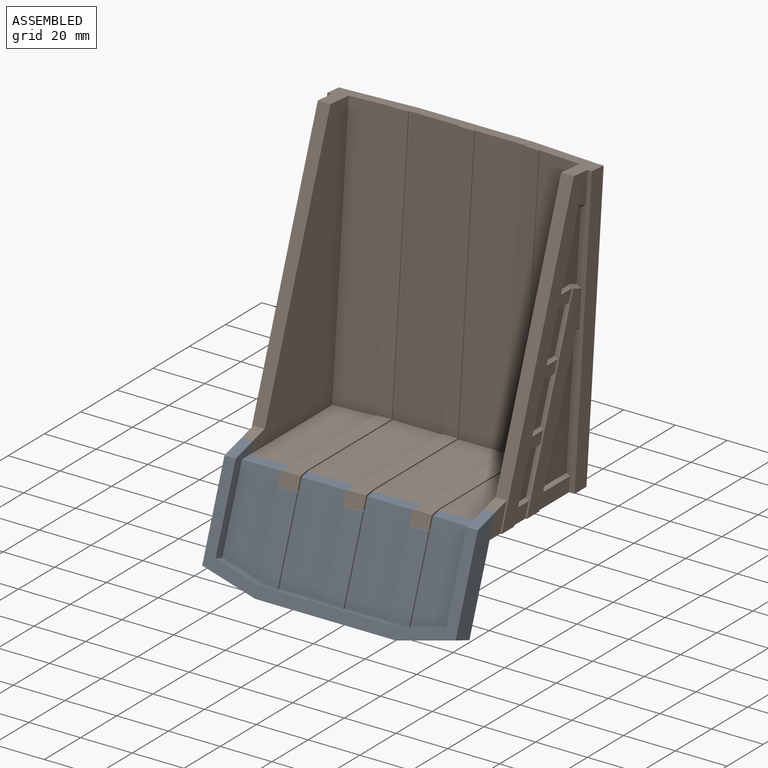
[diagram: assembled view]
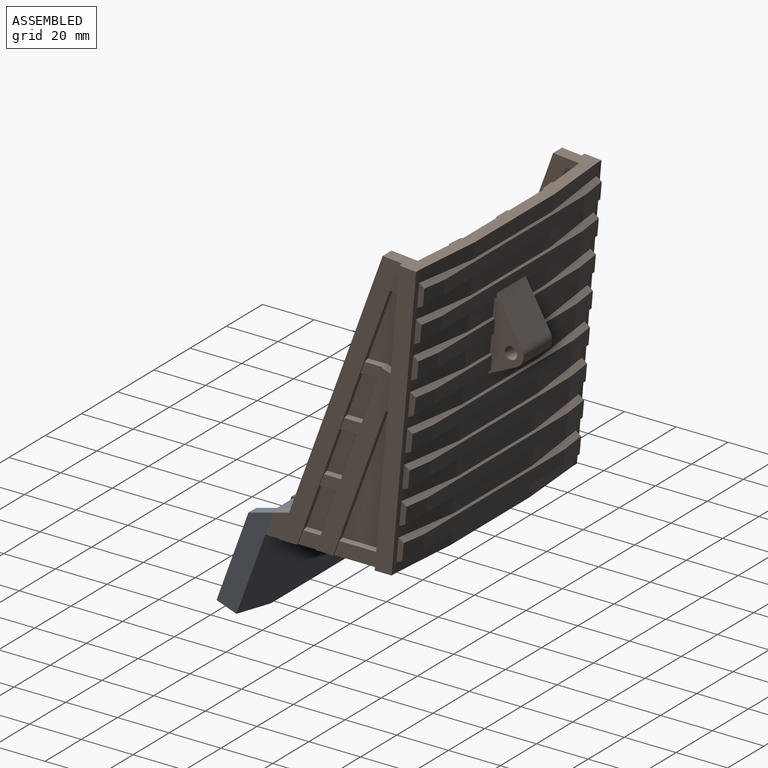
[diagram: assembled view, second angle]
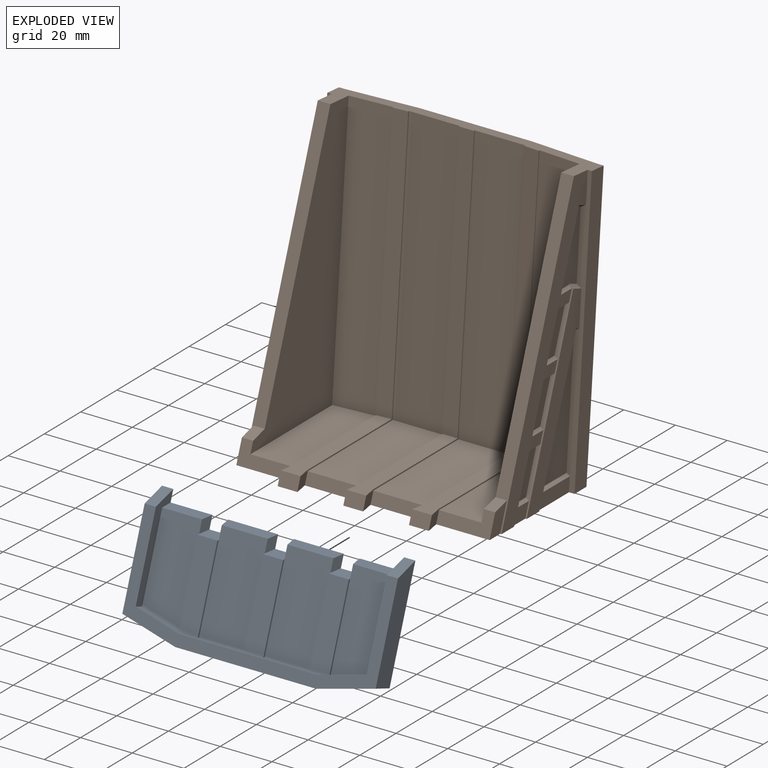
[diagram: exploded view]
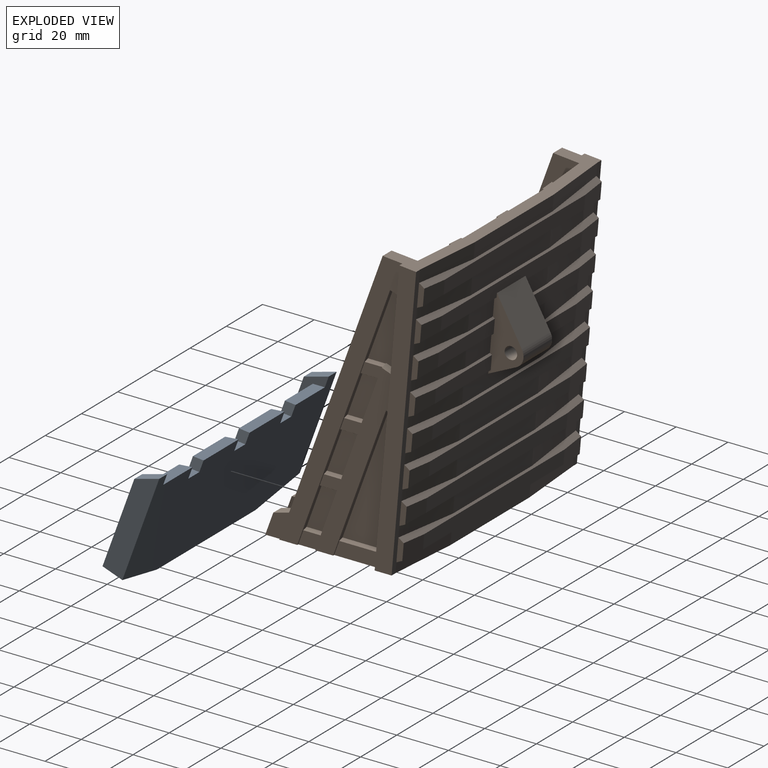
[diagram: exploded view, second angle]
ASSEMBLY  parts=2 mates=3
PART A: 40 faces, bbox 98x23.8x44.3 mm
  f0: plane 33.98x15.42mm, normal (0,-0.94,0.34), area 527.9mm2, adj f3,f8,f16,f23,f25,f39
  f1: plane 34.58x17.78mm, normal (0,-0.94,0.34), area 654.2mm2, adj f4,f6,f23,f24,f27,f29,f36,f38
  f2: plane 34.58x17.78mm, normal (0,-0.94,0.34), area 654.2mm2, adj f5,f6,f27,f28,f31,f33,f34,f37
  f3: plane 16.19x4.63mm, normal (0,0,1), area 73.2mm2, adj f0,f9,f16,f39
  f4: plane 19.31x4.63mm, normal (0,0,1), area 85.9mm2, adj f1,f9,f36,f38
  f5: plane 19.31x4.63mm, normal (0,0,1), area 85.9mm2, adj f2,f9,f34,f37
  f6: plane 53.36x3.58mm, normal (0,0.34,0.94), area 190.4mm2, adj f1,f2,f7,f8,f11,f22,f24,f26
  f7: plane 17.95x5.27mm, normal (-0.24,0.33,0.91), area 68.6mm2, adj f6,f10,f11,f15,f30,f32
  f8: plane 17.95x5.27mm, normal (0.24,0.33,0.91), area 68.6mm2, adj f0,f6,f11,f16,f22,f25
  f9: plane 97.97x44.31mm, normal (0,0.94,-0.34), area 4019.6mm2, adj f3,f4,f5,f12,f13,f14,f15,f16
  f10: plane 33.98x15.42mm, normal (0,-0.94,0.34), area 527.9mm2, adj f7,f15,f17,f31,f32,f35
  f11: plane 97.97x38.94mm, normal (0,-0.94,0.34), area 711.6mm2, adj f6,f7,f8,f12,f13,f14,f15,f16
  f12: plane 21.77x9.53mm, normal (-0.24,-0.33,-0.91), area 183.2mm2, adj f9,f11,f13,f20
  f13: plane 54.43x7.67mm, normal (0,-0.34,-0.94), area 444.4mm2, adj f9,f11,f12,f14
  f14: plane 21.77x9.53mm, normal (0.24,-0.33,-0.91), area 183.2mm2, adj f9,f11,f13,f21
  f15: plane 34.51x20.78mm, normal (-1,0,0), area 145.3mm2, adj f7,f9,f10,f11,f17,f18
  f16: plane 34.51x20.78mm, normal (1,0,0), area 145.3mm2, adj f0,f3,f8,f9,f11,f19
  f17: plane 16.19x4.63mm, normal (0,0,1), area 73.2mm2, adj f9,f10,f15,f35
  f18: plane 9.63x4.35mm, normal (0,-0.26,0.97), area 43.4mm2, adj f9,f11,f15,f21
  f19: plane 9.63x4.35mm, normal (0,-0.26,0.97), area 43.4mm2, adj f9,f11,f16,f20
  f20: plane 39.2x21.94mm, normal (-1,0,0), area 317.2mm2, adj f9,f11,f12,f19
  f21: plane 39.2x21.94mm, normal (1,0,0), area 317.2mm2, adj f9,f11,f14,f18
  f22: plane 29.85x10.86mm, normal (0,-0.94,0.34), area 241.2mm2, adj f6,f8,f23,f24,f25
  f23: plane 7.62x5.41mm, normal (0,0,1), area 37.6mm2, adj f0,f1,f9,f22,f24,f25,f38,f39
  f24: plane 30.09x11.64mm, normal (1,0,0), area 23.1mm2, adj f1,f6,f22,f23
  f25: plane 29.5x11.42mm, normal (-1,0,0), area 22.7mm2, adj f0,f8,f22,f23
  f26: plane 29.85x10.86mm, normal (0,-0.94,0.34), area 242mm2, adj f6,f27,f28,f29
  f27: plane 7.62x5.41mm, normal (0,0,1), area 37.6mm2, adj f1,f2,f9,f26,f28,f29,f36,f37
  f28: plane 30.09x11.64mm, normal (1,0,0), area 23.1mm2, adj f2,f6,f26,f27
  f29: plane 30.09x11.64mm, normal (-1,0,0), area 23.1mm2, adj f1,f6,f26,f27
  f30: plane 29.85x10.86mm, normal (0,-0.94,0.34), area 241.2mm2, adj f6,f7,f31,f32,f33
  f31: plane 7.62x5.41mm, normal (0,0,1), area 37.6mm2, adj f2,f9,f10,f30,f32,f33,f34,f35
  f32: plane 29.5x11.42mm, normal (1,0,0), area 22.7mm2, adj f7,f10,f30,f31
  f33: plane 30.09x11.64mm, normal (-1,0,0), area 23.1mm2, adj f2,f6,f30,f31
  f34: plane 6.26x4.48mm, normal (0.98,-0.16,0.06), area 21.1mm2, adj f2,f5,f9,f31
  f35: plane 6.26x4.48mm, normal (-0.98,-0.16,0.06), area 21.1mm2, adj f9,f10,f17,f31
  f36: plane 6.26x4.48mm, normal (0.98,-0.16,0.06), area 21.1mm2, adj f1,f4,f9,f27
  f37: plane 6.26x4.48mm, normal (-0.98,-0.16,0.06), area 21.1mm2, adj f2,f5,f9,f27
  f38: plane 6.26x4.48mm, normal (-0.98,-0.16,0.06), area 21.1mm2, adj f1,f4,f9,f23
  f39: plane 6.26x4.48mm, normal (0.98,-0.16,0.06), area 21.1mm2, adj f0,f3,f9,f23
PART B: 210 faces, bbox 102.3x76.5x109.9 mm
  f0: plane 104.63x16.32mm, normal (-0.08,-0.99,0.09), area 1718.3mm2, adj f87,f89,f177,f201
  f1: plane 51.67x7.56mm, normal (0,0,1), area 304.3mm2, adj f187,f200,f201,f202,f203,f209
  f2: plane 104.47x9.21mm, normal (0.08,-0.99,0.09), area 93.4mm2, adj f7,f88,f177,f197
  f3: plane 51.67x7.56mm, normal (0,0,1), area 304.3mm2, adj f181,f196,f197,f198,f199,f208
  f4: plane 104.47x18.68mm, normal (0,-1,0.09), area 1959.3mm2, adj f5,f92,f177,f192,f204
  f5: plane 46.98x19.57mm, normal (0,0,1), area 919.5mm2, adj f4,f8,f92,f192,f200
  f6: plane 46.45x16.32mm, normal (0,0,1), area 747.2mm2, adj f10,f90,f91,f196
  f7: plane 46.98x19.57mm, normal (0,0,1), area 919.5mm2, adj f2,f9,f88,f191,f197
  f8: plane 19.57x4.35mm, normal (0,-0.94,0.34), area 90.7mm2, adj f5,f174,f185,f189
  f9: plane 19.57x4.35mm, normal (0,-0.94,0.34), area 90.7mm2, adj f7,f174,f182,f186
  f10: plane 20.67x8.51mm, normal (0,-0.94,0.34), area 115mm2, adj f6,f41,f82,f90,f174,f183
  f11: plane 8.93x5.44mm, normal (1,0,0), area 37.8mm2, adj f15,f143,f174,f175
  f12: plane 8.54x4.35mm, normal (1,0,0), area 30.3mm2, adj f15,f144,f146,f175
  f13: plane 8.54x4.35mm, normal (1,0,0), area 30.3mm2, adj f15,f147,f149,f175
  f14: plane 8.54x4.35mm, normal (1,0,0), area 30.3mm2, adj f15,f150,f152,f175
  f15: plane 71.71x26.1mm, normal (0,-0.94,0.34), area 113.5mm2, adj f11,f12,f13,f14,f18,f19,f143,f144
  f16: plane 56.17x20.44mm, normal (0,0.94,-0.34), area 104.4mm2, adj f17,f19,f32,f154,f155,f174
  f17: plane 1.97x1.91mm, normal (0.5,-0.3,-0.81), area 4.1mm2, adj f16,f19,f21,f155
  f18: plane 4.54x2.65mm, normal (0.5,0.3,0.81), area 10.1mm2, adj f15,f19,f21,f153
  f19: plane 70.67x30.17mm, normal (1,0,0), area 482.8mm2, adj f15,f16,f17,f18,f21,f174
  f20: plane 10.23x9.52mm, normal (1,0,0), area 54.3mm2, adj f86,f174,f178,f180
  f21: plane 109.2x9.55mm, normal (0,-1,0.09), area 328.2mm2, adj f17,f18,f19,f23,f32,f153,f154,f155
  f22: plane 108.63x9.5mm, normal (0,1,-0.09), area 237.4mm2, adj f23,f24,f25,f26,f27,f28,f29,f30
  f23: plane 109.2x16.06mm, normal (1,0,0), area 714.1mm2, adj f21,f22,f174,f177
  f24: plane 8.87x2.84mm, normal (1,0,0), area 16.6mm2, adj f22,f97,f98,f99
  f25: plane 8.87x2.84mm, normal (1,0,0), area 16.6mm2, adj f22,f102,f103,f104
  f26: plane 8.87x2.84mm, normal (1,0,0), area 16.6mm2, adj f22,f107,f108,f109
  f27: plane 8.87x2.84mm, normal (1,0,0), area 16.6mm2, adj f22,f112,f113,f114
  f28: plane 8.87x2.84mm, normal (1,0,0), area 16.6mm2, adj f22,f121,f122,f123
  f29: plane 8.87x2.84mm, normal (1,0,0), area 16.6mm2, adj f22,f129,f130,f131
  f30: plane 8.87x2.84mm, normal (1,0,0), area 16.6mm2, adj f22,f134,f135,f136
  f31: plane 8.87x2.84mm, normal (1,0,0), area 16.6mm2, adj f22,f139,f140,f141
  f32: plane 17.65x5.44mm, normal (1,0,0), area 89.4mm2, adj f16,f21,f154,f174
  f33: plane 98.69x35.92mm, normal (0,0.94,-0.34), area 168.2mm2, adj f34,f36,f37,f38,f39,f40,f156,f157
  f34: plane 4.05x2.47mm, normal (-0.5,-0.3,-0.81), area 8.9mm2, adj f33,f36,f42,f166
  f35: plane 109.87x39.99mm, normal (0,-0.94,0.34), area 525.3mm2, adj f36,f41,f82,f90,f174,f177
  f36: plane 109.87x47.58mm, normal (-1,0,0), area 788.7mm2, adj f33,f34,f35,f42,f174,f177
  f37: plane 8.93x5.44mm, normal (-1,0,0), area 37.8mm2, adj f33,f156,f169,f174
  f38: plane 8.54x4.35mm, normal (-1,0,0), area 30.3mm2, adj f33,f157,f159,f169
  f39: plane 8.54x4.35mm, normal (-1,0,0), area 30.3mm2, adj f33,f160,f162,f169
  f40: plane 8.54x4.35mm, normal (-1,0,0), area 30.3mm2, adj f33,f163,f165,f169
  f41: plane 10.23x9.52mm, normal (-1,0,0), area 54.3mm2, adj f10,f35,f82,f174
  f42: plane 109.2x9.55mm, normal (0,-1,0.09), area 328.2mm2, adj f34,f36,f44,f53,f166,f167,f168,f171
  f43: plane 108.63x9.5mm, normal (0,1,-0.09), area 237.4mm2, adj f44,f45,f46,f47,f48,f49,f50,f51
  f44: plane 109.2x16.06mm, normal (-1,0,0), area 714.1mm2, adj f42,f43,f174,f177
  f45: plane 8.87x2.84mm, normal (-1,0,0), area 16.6mm2, adj f43,f98,f99,f100
  f46: plane 8.87x2.84mm, normal (-1,0,0), area 16.6mm2, adj f43,f103,f104,f105
  f47: plane 8.87x2.84mm, normal (-1,0,0), area 16.6mm2, adj f43,f108,f109,f110
  f48: plane 8.87x2.84mm, normal (-1,0,0), area 16.6mm2, adj f43,f113,f114,f115
  f49: plane 8.87x2.84mm, normal (-1,0,0), area 16.6mm2, adj f43,f116,f117,f118
  f50: plane 8.87x2.84mm, normal (-1,0,0), area 16.6mm2, adj f43,f124,f125,f126
  f51: plane 8.87x2.84mm, normal (-1,0,0), area 16.6mm2, adj f43,f132,f135,f137
  f52: plane 8.87x2.84mm, normal (-1,0,0), area 16.6mm2, adj f43,f140,f141,f142
  f53: plane 17.65x5.44mm, normal (-1,0,0), area 89.4mm2, adj f42,f167,f170,f174
  f54: plane 43.54x6.04mm, normal (0,1,-0.09), area 263.9mm2, adj f55,f56,f140,f177
  f55: plane 27.21x6.23mm, normal (-0.08,0.99,-0.09), area 148.3mm2, adj f43,f54,f140,f177
  f56: plane 27.21x6.23mm, normal (0.08,0.99,-0.09), area 148.3mm2, adj f22,f54,f140,f177
  f57: plane 43.54x6.65mm, normal (0,1,-0.09), area 290.7mm2, adj f59,f60,f135,f141
  f58: plane 13.88x6.65mm, normal (0,1,-0.09), area 92.7mm2, adj f64,f65,f130,f136
  f59: plane 27.21x6.65mm, normal (-0.08,0.99,-0.09), area 148mm2, adj f43,f57,f135,f141
  f60: plane 27.21x6.65mm, normal (0.08,0.99,-0.09), area 148mm2, adj f22,f57,f135,f141
  f61: plane 13.88x6.65mm, normal (0,1,-0.09), area 92.7mm2, adj f63,f66,f126,f132
  f62: plane 13.88x6.65mm, normal (0,1,-0.09), area 92.7mm2, adj f65,f69,f122,f131
  f63: plane 27.21x6.65mm, normal (-0.08,0.99,-0.09), area 148mm2, adj f43,f61,f126,f132
  f64: plane 27.21x6.65mm, normal (0.08,0.99,-0.09), area 148mm2, adj f22,f58,f130,f136
  f65: plane 29.06x13.65mm, normal (1,0,0), area 191mm2, adj f58,f62,f70,f93,f94,f95,f120,f122
  f66: plane 29.06x13.65mm, normal (-1,0,0), area 191mm2, adj f61,f67,f70,f93,f94,f95,f117,f118
  f67: plane 13.88x6.65mm, normal (0,1,-0.09), area 92.7mm2, adj f66,f68,f117,f125
  f68: plane 27.21x6.65mm, normal (-0.08,0.99,-0.09), area 148mm2, adj f43,f67,f117,f125
  f69: plane 27.21x6.65mm, normal (0.08,0.99,-0.09), area 148mm2, adj f22,f62,f122,f131
  f70: plane 43.54x6.65mm, normal (0,1,-0.09), area 273.8mm2, adj f65,f66,f71,f72,f94,f113,f118,f123
  f71: plane 27.21x6.65mm, normal (-0.08,0.99,-0.09), area 148mm2, adj f43,f70,f113,f118
  f72: plane 27.21x6.65mm, normal (0.08,0.99,-0.09), area 148mm2, adj f22,f70,f113,f123
  f73: plane 43.54x6.65mm, normal (0,1,-0.09), area 290.7mm2, adj f74,f75,f108,f114
  f74: plane 27.21x6.65mm, normal (-0.08,0.99,-0.09), area 148mm2, adj f43,f73,f108,f114
  f75: plane 27.21x6.65mm, normal (0.08,0.99,-0.09), area 148mm2, adj f22,f73,f108,f114
  f76: plane 43.54x6.65mm, normal (0,1,-0.09), area 290.7mm2, adj f77,f78,f103,f109
  f77: plane 27.21x6.65mm, normal (-0.08,0.99,-0.09), area 148mm2, adj f43,f76,f103,f109
  f78: plane 27.21x6.65mm, normal (0.08,0.99,-0.09), area 148mm2, adj f22,f76,f103,f109
  f79: plane 43.54x6.65mm, normal (0,1,-0.09), area 290.7mm2, adj f80,f81,f98,f104
  f80: plane 27.21x6.65mm, normal (-0.08,0.99,-0.09), area 148mm2, adj f43,f79,f98,f104
  f81: plane 27.21x6.65mm, normal (0.08,0.99,-0.09), area 148mm2, adj f22,f79,f98,f104
  f82: plane 6.42x4.35mm, normal (0,-0.26,0.97), area 28.9mm2, adj f10,f35,f41,f90
  f83: plane 43.54x4.95mm, normal (0,1,-0.09), area 216.5mm2, adj f84,f85,f99,f174
  f84: plane 27.21x4.95mm, normal (-0.08,0.99,-0.09), area 121.2mm2, adj f43,f83,f99,f174
  f85: plane 27.21x4.95mm, normal (0.08,0.99,-0.09), area 121.2mm2, adj f22,f83,f99,f174
  f86: plane 6.42x4.35mm, normal (0,-0.26,0.97), area 28.9mm2, adj f20,f89,f178,f180
  f87: plane 46.45x16.32mm, normal (0,0,1), area 747.2mm2, adj f0,f89,f180,f201
  f88: plane 104.47x18.68mm, normal (0,-1,0.09), area 1959.3mm2, adj f2,f7,f177,f191,f207
  f89: plane 105.51x54.29mm, normal (-1,0,0), area 2636.6mm2, adj f0,f86,f87,f177,f178,f180
  f90: plane 105.51x54.29mm, normal (1,0,0), area 2636.6mm2, adj f6,f10,f35,f82,f91,f177
  f91: plane 104.63x16.32mm, normal (0.08,-0.99,0.09), area 1718.3mm2, adj f6,f90,f177,f196
  f92: plane 104.47x9.21mm, normal (-0.08,-0.99,0.09), area 93.4mm2, adj f4,f5,f177,f200
  f93: plane 17.13x15.78mm, normal (0,0.87,0.49), area 310.4mm2, adj f65,f66,f95,f133
  f94: plane 15.78x10.84mm, normal (0,0.43,-0.91), area 189mm2, adj f65,f66,f70,f95
  f95: cylinder r=4.9mm len=15.78mm, axis (-1,0,0), area 127.2mm2, adj f65,f66,f93,f94
  f96: plane 77.56x5.42mm, normal (0,1,-0.09), area 422.2mm2, adj f97,f98,f99,f100
  f97: plane 10.21x6.36mm, normal (0.08,0.99,-0.09), area 60.5mm2, adj f24,f96,f98,f99
  f98: plane 97.97x2.83mm, normal (0,0.57,0.82), area 151.2mm2, adj f24,f45,f79,f80,f81,f96,f97,f100
  f99: plane 97.97x3.13mm, normal (0,0.42,-0.91), area 151.2mm2, adj f24,f45,f83,f84,f85,f96,f97,f100
  f100: plane 10.21x6.36mm, normal (-0.08,0.99,-0.09), area 60.5mm2, adj f45,f96,f98,f99
  f101: plane 77.56x5.42mm, normal (0,1,-0.09), area 422.2mm2, adj f102,f103,f104,f105
  f102: plane 10.21x6.36mm, normal (0.08,0.99,-0.09), area 60.5mm2, adj f25,f101,f103,f104
  f103: plane 97.97x2.83mm, normal (0,0.57,0.82), area 151.2mm2, adj f25,f46,f76,f77,f78,f101,f102,f105
  f104: plane 97.97x3.13mm, normal (0,0.42,-0.91), area 151.2mm2, adj f25,f46,f79,f80,f81,f101,f102,f105
  f105: plane 10.21x6.36mm, normal (-0.08,0.99,-0.09), area 60.5mm2, adj f46,f101,f103,f104
  f106: plane 77.56x5.42mm, normal (0,1,-0.09), area 422.2mm2, adj f107,f108,f109,f110
  f107: plane 10.21x6.36mm, normal (0.08,0.99,-0.09), area 60.5mm2, adj f26,f106,f108,f109
  f108: plane 97.97x2.83mm, normal (0,0.57,0.82), area 151.2mm2, adj f26,f47,f73,f74,f75,f106,f107,f110
  f109: plane 97.97x3.13mm, normal (0,0.42,-0.91), area 151.2mm2, adj f26,f47,f76,f77,f78,f106,f107,f110
  f110: plane 10.21x6.36mm, normal (-0.08,0.99,-0.09), area 60.5mm2, adj f47,f106,f108,f109
  f111: plane 77.56x5.42mm, normal (0,1,-0.09), area 422.2mm2, adj f112,f113,f114,f115
  f112: plane 10.21x6.36mm, normal (0.08,0.99,-0.09), area 60.5mm2, adj f27,f111,f113,f114
  f113: plane 97.97x2.83mm, normal (0,0.57,0.82), area 151.2mm2, adj f27,f48,f70,f71,f72,f111,f112,f115
  f114: plane 97.97x3.13mm, normal (0,0.42,-0.91), area 151.2mm2, adj f27,f48,f73,f74,f75,f111,f112,f115
  f115: plane 10.21x6.36mm, normal (-0.08,0.99,-0.09), area 60.5mm2, adj f48,f111,f113,f114
  f116: plane 10.21x6.36mm, normal (-0.08,0.99,-0.09), area 60.5mm2, adj f49,f117,f118,f119
  f117: plane 41.09x2.83mm, normal (0,0.57,0.82), area 68.1mm2, adj f49,f66,f67,f68,f116,f119
  f118: plane 41.09x3.13mm, normal (0,0.42,-0.91), area 68.1mm2, adj f49,f66,f70,f71,f116,f119
  f119: plane 30.89x5.42mm, normal (0,1,-0.09), area 168.1mm2, adj f66,f116,f117,f118
  f120: plane 30.89x5.42mm, normal (0,1,-0.09), area 168.1mm2, adj f65,f121,f122,f123
  f121: plane 10.21x6.36mm, normal (0.08,0.99,-0.09), area 60.5mm2, adj f28,f120,f122,f123
  f122: plane 41.09x2.83mm, normal (0,0.57,0.82), area 68.1mm2, adj f28,f62,f65,f69,f120,f121
  f123: plane 41.09x3.13mm, normal (0,0.42,-0.91), area 68.1mm2, adj f28,f65,f70,f72,f120,f121
  f124: plane 10.21x6.36mm, normal (-0.08,0.99,-0.09), area 60.5mm2, adj f50,f125,f126,f127
  f125: plane 41.09x3.13mm, normal (0,0.42,-0.91), area 68.1mm2, adj f50,f66,f67,f68,f124,f127
  f126: plane 41.09x2.83mm, normal (0,0.57,0.82), area 68.1mm2, adj f50,f61,f63,f66,f124,f127
  f127: plane 30.89x5.42mm, normal (0,1,-0.09), area 168.1mm2, adj f66,f124,f125,f126
  f128: plane 30.89x5.42mm, normal (0,1,-0.09), area 168.1mm2, adj f65,f129,f130,f131
  f129: plane 10.21x6.36mm, normal (0.08,0.99,-0.09), area 60.5mm2, adj f29,f128,f130,f131
  f130: plane 41.09x2.83mm, normal (0,0.57,0.82), area 68.1mm2, adj f29,f58,f64,f65,f128,f129
  f131: plane 41.09x3.13mm, normal (0,0.42,-0.91), area 68.1mm2, adj f29,f62,f65,f69,f128,f129
  f132: plane 41.09x3.13mm, normal (0,0.42,-0.91), area 68.1mm2, adj f51,f61,f63,f66,f133,f137
  f133: plane 77.56x5.42mm, normal (0,1,-0.09), area 397.3mm2, adj f65,f66,f93,f132,f134,f135,f136,f137
  f134: plane 10.21x6.36mm, normal (0.08,0.99,-0.09), area 60.5mm2, adj f30,f133,f135,f136
  f135: plane 97.97x2.83mm, normal (0,0.57,0.82), area 151.2mm2, adj f30,f51,f57,f59,f60,f133,f134,f137
  f136: plane 41.09x3.13mm, normal (0,0.42,-0.91), area 68.1mm2, adj f30,f58,f64,f65,f133,f134
  f137: plane 10.21x6.36mm, normal (-0.08,0.99,-0.09), area 60.5mm2, adj f51,f132,f133,f135
  f138: plane 77.56x5.42mm, normal (0,1,-0.09), area 422.2mm2, adj f139,f140,f141,f142
  f139: plane 10.21x6.36mm, normal (0.08,0.99,-0.09), area 60.5mm2, adj f31,f138,f140,f141
  f140: plane 97.97x2.83mm, normal (0,0.57,0.82), area 151.2mm2, adj f31,f52,f54,f55,f56,f138,f139,f142
  f141: plane 97.97x3.13mm, normal (0,0.42,-0.91), area 151.2mm2, adj f31,f52,f57,f59,f60,f138,f139,f142
  f142: plane 10.21x6.36mm, normal (-0.08,0.99,-0.09), area 60.5mm2, adj f52,f138,f140,f141
  f143: plane 7.24x1.36mm, normal (0.5,0,0.87), area 10.9mm2, adj f11,f15,f145,f175
  f144: plane 7.24x1.36mm, normal (0.5,0,-0.87), area 10.9mm2, adj f12,f15,f145,f175
  f145: plane 15.82x12.71mm, normal (1,0,0), area 109.9mm2, adj f15,f143,f144,f175
  f146: plane 7.24x1.36mm, normal (0.5,0,0.87), area 10.9mm2, adj f12,f15,f148,f175
  f147: plane 7.24x1.36mm, normal (0.5,0,-0.87), area 10.9mm2, adj f13,f15,f148,f175
  f148: plane 15.82x12.71mm, normal (1,0,0), area 109.9mm2, adj f15,f146,f147,f175
  f149: plane 7.24x1.36mm, normal (0.5,0,0.87), area 10.9mm2, adj f13,f15,f151,f175
  f150: plane 7.24x1.36mm, normal (0.5,0,-0.87), area 10.9mm2, adj f14,f15,f151,f175
  f151: plane 15.82x12.71mm, normal (1,0,0), area 109.9mm2, adj f15,f149,f150,f175
  f152: plane 7.24x1.36mm, normal (0.5,0,0.87), area 10.9mm2, adj f14,f15,f153,f175
  f153: plane 27.46x13.48mm, normal (1,0,0), area 200.8mm2, adj f15,f18,f21,f152,f175,f176
  f154: plane 15.74x1.36mm, normal (0.5,0,0.87), area 24.4mm2, adj f16,f21,f32,f155
  f155: plane 48.9x19.67mm, normal (1,0,0), area 424.4mm2, adj f16,f17,f21,f154
  f156: plane 7.24x1.36mm, normal (-0.5,0,0.87), area 10.9mm2, adj f33,f37,f158,f169
  f157: plane 7.24x1.36mm, normal (-0.5,0,-0.87), area 10.9mm2, adj f33,f38,f158,f169
  f158: plane 15.82x12.71mm, normal (-1,0,0), area 109.9mm2, adj f33,f156,f157,f169
  f159: plane 7.24x1.36mm, normal (-0.5,0,0.87), area 10.9mm2, adj f33,f38,f161,f169
  f160: plane 7.24x1.36mm, normal (-0.5,0,-0.87), area 10.9mm2, adj f33,f39,f161,f169
  f161: plane 15.82x12.71mm, normal (-1,0,0), area 109.9mm2, adj f33,f159,f160,f169
  f162: plane 7.24x1.36mm, normal (-0.5,0,0.87), area 10.9mm2, adj f33,f39,f164,f169
  f163: plane 7.24x1.36mm, normal (-0.5,0,-0.87), area 10.9mm2, adj f33,f40,f164,f169
  f164: plane 15.82x12.71mm, normal (-1,0,0), area 109.9mm2, adj f33,f162,f163,f169
  f165: plane 7.24x1.36mm, normal (-0.5,0,0.87), area 10.9mm2, adj f33,f40,f166,f169
  f166: plane 27.46x13.48mm, normal (-1,0,0), area 200.8mm2, adj f33,f34,f42,f165,f169,f172
  f167: plane 15.74x1.36mm, normal (-0.5,0,0.87), area 24.4mm2, adj f42,f53,f168,f170
  f168: plane 48.9x19.67mm, normal (-1,0,0), area 424.4mm2, adj f42,f167,f170,f171
  f169: plane 71.71x26.1mm, normal (0,-0.94,0.34), area 113.5mm2, adj f37,f38,f39,f40,f156,f157,f158,f159
  f170: plane 56.17x20.44mm, normal (0,0.94,-0.34), area 104.4mm2, adj f53,f167,f168,f171,f173,f174
  f171: plane 1.97x1.91mm, normal (-0.5,-0.3,-0.81), area 4.1mm2, adj f42,f168,f170,f173
  f172: plane 4.54x2.65mm, normal (-0.5,0.3,0.81), area 10.1mm2, adj f42,f166,f169,f173
  f173: plane 70.67x30.17mm, normal (-1,0,0), area 482.8mm2, adj f42,f169,f170,f171,f172,f174
  f174: plane 102.33x57.97mm, normal (0,0,-1), area 5242.5mm2, adj f8,f9,f10,f11,f15,f16,f19,f20
  f175: plane 98.69x35.92mm, normal (0,0.94,-0.34), area 168.2mm2, adj f11,f12,f13,f14,f143,f144,f145,f146
  f176: plane 4.05x2.47mm, normal (0.5,-0.3,-0.81), area 8.9mm2, adj f21,f153,f175,f179
  f177: plane 102.33x16.27mm, normal (0,0.09,1), area 559.7mm2, adj f0,f2,f4,f21,f22,f23,f35,f36
  f178: plane 109.87x39.99mm, normal (0,-0.94,0.34), area 525.3mm2, adj f20,f86,f89,f174,f177,f179
  f179: plane 109.87x47.58mm, normal (1,0,0), area 788.7mm2, adj f21,f174,f175,f176,f177,f178
  f180: plane 20.67x8.51mm, normal (0,-0.94,0.34), area 115mm2, adj f20,f86,f87,f89,f174,f188
  f181: plane 7.62x4.86mm, normal (0,-0.94,0.34), area 39.4mm2, adj f3,f174,f182,f183,f198,f199
  f182: plane 6.99x4.35mm, normal (0.98,0.16,-0.06), area 23.9mm2, adj f9,f174,f181,f199
  f183: plane 6.99x4.35mm, normal (-0.98,0.16,-0.06), area 23.9mm2, adj f10,f174,f181,f198
  f184: plane 7.62x4.86mm, normal (0,-0.94,0.34), area 39.4mm2, adj f174,f185,f186,f193,f194,f195
  f185: plane 6.99x4.35mm, normal (0.98,0.16,-0.06), area 23.9mm2, adj f8,f174,f184,f195
  f186: plane 6.99x4.35mm, normal (-0.98,0.16,-0.06), area 23.9mm2, adj f9,f174,f184,f194
  f187: plane 7.62x4.86mm, normal (0,-0.94,0.34), area 39.4mm2, adj f1,f174,f188,f189,f202,f203
  f188: plane 6.99x4.35mm, normal (0.98,0.16,-0.06), area 23.9mm2, adj f174,f180,f187,f203
  f189: plane 6.99x4.35mm, normal (-0.98,0.16,-0.06), area 23.9mm2, adj f8,f174,f187,f202
  f190: cylinder r=2.41mm len=15.78mm, axis (1,0,0), area 239.3mm2, adj f65,f66
  f191: plane 47.03x0.51mm, normal (-1,0,0), area 23.9mm2, adj f7,f88,f193,f194
  f192: plane 47.03x0.51mm, normal (1,0,0), area 23.9mm2, adj f4,f5,f193,f195
  f193: plane 52.25x7.56mm, normal (0,0,1), area 309.1mm2, adj f184,f191,f192,f194,f195,f205
  f194: plane 5.41x0.9mm, normal (-0.99,0.16,0), area 2.7mm2, adj f184,f186,f191,f193
  f195: plane 5.41x0.9mm, normal (0.99,0.16,0), area 2.7mm2, adj f184,f185,f192,f193
  f196: plane 104.56x55.59mm, normal (-1,0,0), area 76.8mm2, adj f3,f6,f91,f177,f198,f208
  f197: plane 104.52x56.05mm, normal (1,0,0), area 77mm2, adj f2,f3,f7,f177,f199,f208
  f198: plane 5.41x0.9mm, normal (-0.99,0.16,0), area 2.7mm2, adj f3,f181,f183,f196
  f199: plane 5.41x0.9mm, normal (0.99,0.16,0), area 2.7mm2, adj f3,f181,f182,f197
  f200: plane 104.52x56.05mm, normal (-1,0,0), area 77mm2, adj f1,f5,f92,f177,f202,f209
  f201: plane 104.56x55.59mm, normal (1,0,0), area 76.8mm2, adj f0,f1,f87,f177,f203,f209
  f202: plane 5.41x0.9mm, normal (-0.99,0.16,0), area 2.7mm2, adj f1,f187,f189,f200
  f203: plane 5.41x0.9mm, normal (0.99,0.16,0), area 2.7mm2, adj f1,f187,f188,f201
  f204: plane 104x9.6mm, normal (1,0,0), area 53mm2, adj f4,f177,f205,f206
  f205: plane 5.83x0.51mm, normal (0,-0.09,-1), area 3mm2, adj f193,f204,f206,f207
  f206: plane 103.96x9.1mm, normal (0,-1,0.09), area 608.2mm2, adj f177,f204,f205,f207
  f207: plane 104x9.6mm, normal (-1,0,0), area 53mm2, adj f88,f177,f205,f206
  f208: plane 104.05x9.57mm, normal (0.08,-0.99,0.09), area 610.6mm2, adj f3,f177,f196,f197
  f209: plane 104.05x9.57mm, normal (-0.08,-0.99,0.09), area 610.6mm2, adj f1,f177,f200,f201
PLACE A at identity
PLACE B at identity fixed
MATE planar B.f184 <-> A.f26  axis (0,-0.94,0.34) through (0,-57.08,2.43)mm
MATE planar A.f5 <-> B.f5  axis (0,0,1) through (12.7,-53.26,4.35)mm
MATE planar B.f20 <-> A.f21  axis (1,0,0) through (48.99,-47.86,4.7)mm
